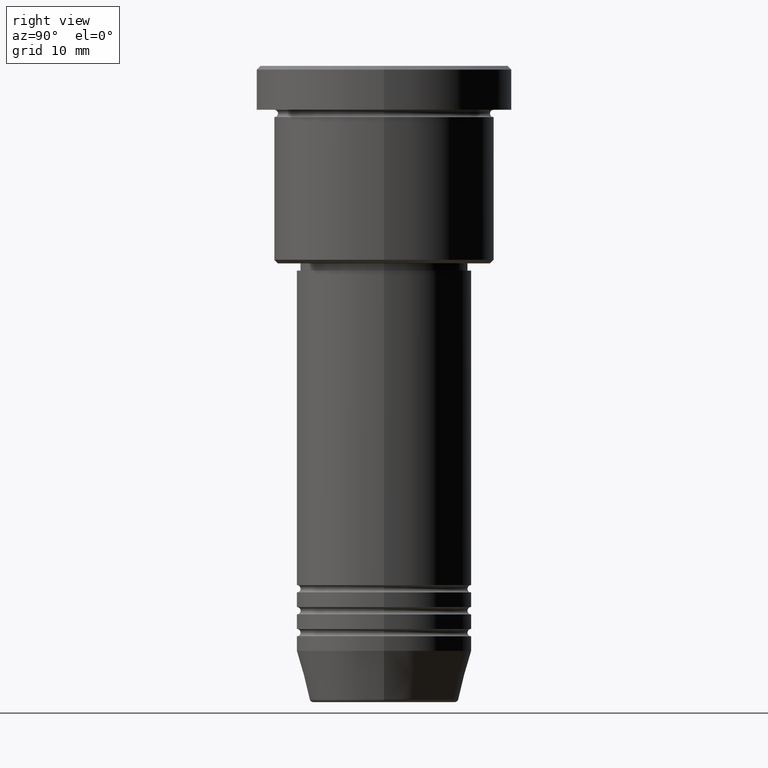
[diagram: clean part render]
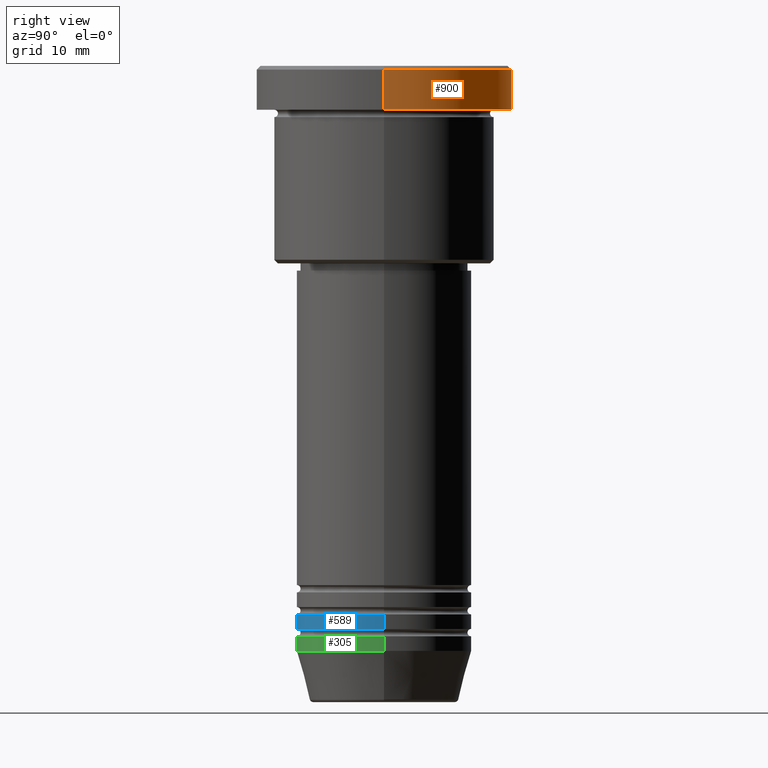
[diagram: same view with three faces highlighted in distinct colors, each labeled with its STEP entity id]
A machine part, right view with three faces highlighted in distinct colors.
Their STEP definitions:

[orange] entity #900 — the highlighted cylindrical surface (partial cylindrical patch) has radius 17.5 mm, axis along (-0, -0, 1).
#12 = ORIENTED_EDGE ( 'NONE', *, *, #813, .T. ) ;
#36 = VERTEX_POINT ( 'NONE', #678 ) ;
#58 = CIRCLE ( 'NONE', #216, 17.50000000000000000 ) ;
#137 = ORIENTED_EDGE ( 'NONE', *, *, #1112, .F. ) ;
#138 = LINE ( 'NONE', #1061, #539 ) ;
#139 = AXIS2_PLACEMENT_3D ( 'NONE', #567, #854, #1134 ) ;
#141 = DIRECTION ( 'NONE',  ( 1.000000000000000000, 0.000000000000000000, 0.000000000000000000 ) ) ;
#154 = CARTESIAN_POINT ( 'NONE',  ( 0.000000000000000000, 0.000000000000000000, -0.5000000000000143219 ) ) ;
#216 = AXIS2_PLACEMENT_3D ( 'NONE', #771, #586, #141 ) ;
#322 = DIRECTION ( 'NONE',  ( -0.000000000000000000, -0.000000000000000000, 1.000000000000000000 ) ) ;
#333 = CARTESIAN_POINT ( 'NONE',  ( -17.50000000000000000, 2.143131898507868248E-15, -0.5000000000000143219 ) ) ;
#446 = DIRECTION ( 'NONE',  ( -0.000000000000000000, -0.000000000000000000, 1.000000000000000000 ) ) ;
#460 = CARTESIAN_POINT ( 'NONE',  ( -17.50000000000000000, 2.143131898507868248E-15, 0.000000000000000000 ) ) ;
#471 = ORIENTED_EDGE ( 'NONE', *, *, #625, .T. ) ;
#496 = EDGE_CURVE ( 'NONE', #36, #748, #58, .T. ) ;
#539 = VECTOR ( 'NONE', #322, 1000.000000000000000 ) ;
#567 = CARTESIAN_POINT ( 'NONE',  ( 0.000000000000000000, 0.000000000000000000, 0.000000000000000000 ) ) ;
#586 = DIRECTION ( 'NONE',  ( -0.000000000000000000, -0.000000000000000000, 1.000000000000000000 ) ) ;
#603 = CARTESIAN_POINT ( 'NONE',  ( 17.50000000000000000, 0.000000000000000000, -0.5000000000000143219 ) ) ;
#625 = EDGE_CURVE ( 'NONE', #674, #1160, #629, .T. ) ;
#629 = CIRCLE ( 'NONE', #1127, 17.50000000000000000 ) ;
#630 = CARTESIAN_POINT ( 'NONE',  ( -17.50000000000000000, 2.143131898507868248E-15, -5.999999999999995559 ) ) ;
#674 = VERTEX_POINT ( 'NONE', #333 ) ;
#678 = CARTESIAN_POINT ( 'NONE',  ( 17.50000000000000000, 0.000000000000000000, -5.999999999999995559 ) ) ;
#691 = DIRECTION ( 'NONE',  ( 1.000000000000000000, 0.000000000000000000, 0.000000000000000000 ) ) ;
#745 = CYLINDRICAL_SURFACE ( 'NONE', #139, 17.50000000000000000 ) ;
#748 = VERTEX_POINT ( 'NONE', #630 ) ;
#758 = FACE_OUTER_BOUND ( 'NONE', #814, .T. ) ;
#771 = CARTESIAN_POINT ( 'NONE',  ( 0.000000000000000000, 0.000000000000000000, -5.999999999999995559 ) ) ;
#808 = LINE ( 'NONE', #460, #1149 ) ;
#813 = EDGE_CURVE ( 'NONE', #748, #674, #808, .T. ) ;
#814 = EDGE_LOOP ( 'NONE', ( #1056, #12, #471, #137 ) ) ;
#854 = DIRECTION ( 'NONE',  ( -0.000000000000000000, -0.000000000000000000, 1.000000000000000000 ) ) ;
#900 = ADVANCED_FACE ( 'NONE', ( #758 ), #745, .T. ) ;
#1056 = ORIENTED_EDGE ( 'NONE', *, *, #496, .T. ) ;
#1061 = CARTESIAN_POINT ( 'NONE',  ( 17.50000000000000000, 0.000000000000000000, 0.000000000000000000 ) ) ;
#1112 = EDGE_CURVE ( 'NONE', #36, #1160, #138, .T. ) ;
#1127 = AXIS2_PLACEMENT_3D ( 'NONE', #154, #1148, #691 ) ;
#1134 = DIRECTION ( 'NONE',  ( 1.000000000000000000, 0.000000000000000000, 0.000000000000000000 ) ) ;
#1148 = DIRECTION ( 'NONE',  ( 0.000000000000000000, 0.000000000000000000, -1.000000000000000000 ) ) ;
#1149 = VECTOR ( 'NONE', #446, 1000.000000000000000 ) ;
#1160 = VERTEX_POINT ( 'NONE', #603 ) ;

[blue] entity #589 — the highlighted cylindrical surface (partial cylindrical patch) has radius 12 mm, axis along (-0, -0, 1).
#51 = DIRECTION ( 'NONE',  ( -0.000000000000000000, -0.000000000000000000, 1.000000000000000000 ) ) ;
#59 = DIRECTION ( 'NONE',  ( -0.000000000000000000, -0.000000000000000000, 1.000000000000000000 ) ) ;
#69 = CARTESIAN_POINT ( 'NONE',  ( -12.00000000000000000, 1.469576158976823947E-15, -76.99999999999997158 ) ) ;
#146 = CARTESIAN_POINT ( 'NONE',  ( 12.00000000000000000, 0.000000000000000000, 0.000000000000000000 ) ) ;
#169 = CARTESIAN_POINT ( 'NONE',  ( -12.00000000000000000, 1.469576158976823947E-15, -74.99999999999997158 ) ) ;
#174 = CARTESIAN_POINT ( 'NONE',  ( 12.00000000000000000, 0.000000000000000000, -74.99999999999997158 ) ) ;
#201 = CIRCLE ( 'NONE', #461, 12.00000000000000000 ) ;
#256 = EDGE_CURVE ( 'NONE', #1144, #421, #201, .T. ) ;
#266 = CYLINDRICAL_SURFACE ( 'NONE', #1170, 12.00000000000000000 ) ;
#319 = CARTESIAN_POINT ( 'NONE',  ( 0.000000000000000000, 0.000000000000000000, -74.99999999999997158 ) ) ;
#330 = DIRECTION ( 'NONE',  ( -0.000000000000000000, -0.000000000000000000, 1.000000000000000000 ) ) ;
#337 = ORIENTED_EDGE ( 'NONE', *, *, #256, .T. ) ;
#393 = DIRECTION ( 'NONE',  ( 1.000000000000000000, 0.000000000000000000, 0.000000000000000000 ) ) ;
#421 = VERTEX_POINT ( 'NONE', #1009 ) ;
#461 = AXIS2_PLACEMENT_3D ( 'NONE', #877, #684, #790 ) ;
#550 = EDGE_CURVE ( 'NONE', #679, #863, #704, .T. ) ;
#577 = ORIENTED_EDGE ( 'NONE', *, *, #1055, .F. ) ;
#589 = ADVANCED_FACE ( 'NONE', ( #959 ), #266, .T. ) ;
#597 = ORIENTED_EDGE ( 'NONE', *, *, #550, .F. ) ;
#667 = VECTOR ( 'NONE', #330, 1000.000000000000000 ) ;
#675 = LINE ( 'NONE', #862, #667 ) ;
#679 = VERTEX_POINT ( 'NONE', #169 ) ;
#684 = DIRECTION ( 'NONE',  ( -0.000000000000000000, -0.000000000000000000, 1.000000000000000000 ) ) ;
#704 = CIRCLE ( 'NONE', #1105, 12.00000000000000000 ) ;
#776 = DIRECTION ( 'NONE',  ( 1.000000000000000000, 0.000000000000000000, 0.000000000000000000 ) ) ;
#790 = DIRECTION ( 'NONE',  ( 1.000000000000000000, 0.000000000000000000, 0.000000000000000000 ) ) ;
#810 = EDGE_LOOP ( 'NONE', ( #577, #337, #1008, #597 ) ) ;
#862 = CARTESIAN_POINT ( 'NONE',  ( -12.00000000000000000, 1.469576158976823947E-15, 0.000000000000000000 ) ) ;
#863 = VERTEX_POINT ( 'NONE', #174 ) ;
#872 = CARTESIAN_POINT ( 'NONE',  ( 0.000000000000000000, 0.000000000000000000, 0.000000000000000000 ) ) ;
#877 = CARTESIAN_POINT ( 'NONE',  ( 0.000000000000000000, 0.000000000000000000, -76.99999999999997158 ) ) ;
#950 = LINE ( 'NONE', #146, #1047 ) ;
#959 = FACE_OUTER_BOUND ( 'NONE', #810, .T. ) ;
#1008 = ORIENTED_EDGE ( 'NONE', *, *, #1097, .T. ) ;
#1009 = CARTESIAN_POINT ( 'NONE',  ( 12.00000000000000000, 0.000000000000000000, -76.99999999999997158 ) ) ;
#1047 = VECTOR ( 'NONE', #51, 1000.000000000000000 ) ;
#1055 = EDGE_CURVE ( 'NONE', #1144, #679, #675, .T. ) ;
#1097 = EDGE_CURVE ( 'NONE', #421, #863, #950, .T. ) ;
#1105 = AXIS2_PLACEMENT_3D ( 'NONE', #319, #1111, #393 ) ;
#1111 = DIRECTION ( 'NONE',  ( -0.000000000000000000, -0.000000000000000000, 1.000000000000000000 ) ) ;
#1144 = VERTEX_POINT ( 'NONE', #69 ) ;
#1170 = AXIS2_PLACEMENT_3D ( 'NONE', #872, #59, #776 ) ;

[green] entity #305 — the highlighted cylindrical surface (partial cylindrical patch) has radius 12 mm, axis along (-0, -0, 1).
#21 = VECTOR ( 'NONE', #523, 1000.000000000000000 ) ;
#56 = LINE ( 'NONE', #680, #21 ) ;
#72 = DIRECTION ( 'NONE',  ( -0.000000000000000000, -0.000000000000000000, 1.000000000000000000 ) ) ;
#81 = DIRECTION ( 'NONE',  ( 1.000000000000000000, 0.000000000000000000, 0.000000000000000000 ) ) ;
#143 = ORIENTED_EDGE ( 'NONE', *, *, #176, .T. ) ;
#176 = EDGE_CURVE ( 'NONE', #705, #883, #874, .T. ) ;
#182 = VECTOR ( 'NONE', #205, 1000.000000000000000 ) ;
#205 = DIRECTION ( 'NONE',  ( -0.000000000000000000, -0.000000000000000000, 1.000000000000000000 ) ) ;
#279 = AXIS2_PLACEMENT_3D ( 'NONE', #472, #1084, #913 ) ;
#304 = CARTESIAN_POINT ( 'NONE',  ( 12.00000000000000000, 0.000000000000000000, -77.99999999999998579 ) ) ;
#305 = ADVANCED_FACE ( 'NONE', ( #361 ), #922, .T. ) ;
#307 = CARTESIAN_POINT ( 'NONE',  ( 12.00000000000000000, 0.000000000000000000, 0.000000000000000000 ) ) ;
#361 = FACE_OUTER_BOUND ( 'NONE', #511, .T. ) ;
#407 = CARTESIAN_POINT ( 'NONE',  ( 12.00000000000000000, 0.000000000000000000, -79.99999999999998579 ) ) ;
#429 = CARTESIAN_POINT ( 'NONE',  ( -12.00000000000000000, 1.469576158976823947E-15, -77.99999999999998579 ) ) ;
#472 = CARTESIAN_POINT ( 'NONE',  ( 0.000000000000000000, 0.000000000000000000, 0.000000000000000000 ) ) ;
#511 = EDGE_LOOP ( 'NONE', ( #1015, #143, #710, #905 ) ) ;
#513 = CARTESIAN_POINT ( 'NONE',  ( 0.000000000000000000, 0.000000000000000000, -77.99999999999998579 ) ) ;
#523 = DIRECTION ( 'NONE',  ( -0.000000000000000000, -0.000000000000000000, 1.000000000000000000 ) ) ;
#604 = DIRECTION ( 'NONE',  ( -0.000000000000000000, -0.000000000000000000, 1.000000000000000000 ) ) ;
#616 = DIRECTION ( 'NONE',  ( 1.000000000000000000, 0.000000000000000000, 0.000000000000000000 ) ) ;
#635 = EDGE_CURVE ( 'NONE', #672, #999, #785, .T. ) ;
#672 = VERTEX_POINT ( 'NONE', #429 ) ;
#680 = CARTESIAN_POINT ( 'NONE',  ( -12.00000000000000000, 1.469576158976823947E-15, 0.000000000000000000 ) ) ;
#705 = VERTEX_POINT ( 'NONE', #1162 ) ;
#710 = ORIENTED_EDGE ( 'NONE', *, *, #884, .T. ) ;
#747 = AXIS2_PLACEMENT_3D ( 'NONE', #513, #604, #616 ) ;
#763 = LINE ( 'NONE', #307, #182 ) ;
#785 = CIRCLE ( 'NONE', #747, 12.00000000000000000 ) ;
#802 = AXIS2_PLACEMENT_3D ( 'NONE', #893, #72, #81 ) ;
#874 = CIRCLE ( 'NONE', #802, 12.00000000000000000 ) ;
#883 = VERTEX_POINT ( 'NONE', #407 ) ;
#884 = EDGE_CURVE ( 'NONE', #883, #999, #763, .T. ) ;
#893 = CARTESIAN_POINT ( 'NONE',  ( 0.000000000000000000, 0.000000000000000000, -79.99999999999998579 ) ) ;
#905 = ORIENTED_EDGE ( 'NONE', *, *, #635, .F. ) ;
#913 = DIRECTION ( 'NONE',  ( 1.000000000000000000, 0.000000000000000000, 0.000000000000000000 ) ) ;
#922 = CYLINDRICAL_SURFACE ( 'NONE', #279, 12.00000000000000000 ) ;
#999 = VERTEX_POINT ( 'NONE', #304 ) ;
#1015 = ORIENTED_EDGE ( 'NONE', *, *, #1132, .F. ) ;
#1084 = DIRECTION ( 'NONE',  ( -0.000000000000000000, -0.000000000000000000, 1.000000000000000000 ) ) ;
#1132 = EDGE_CURVE ( 'NONE', #705, #672, #56, .T. ) ;
#1162 = CARTESIAN_POINT ( 'NONE',  ( -12.00000000000000000, 1.469576158976823947E-15, -79.99999999999998579 ) ) ;